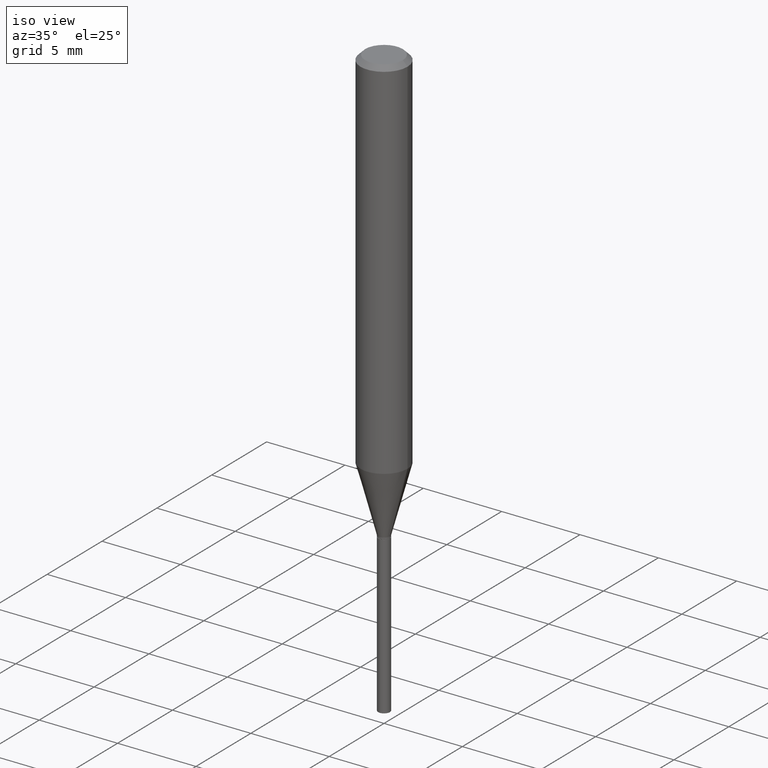
[diagram: clean part render]
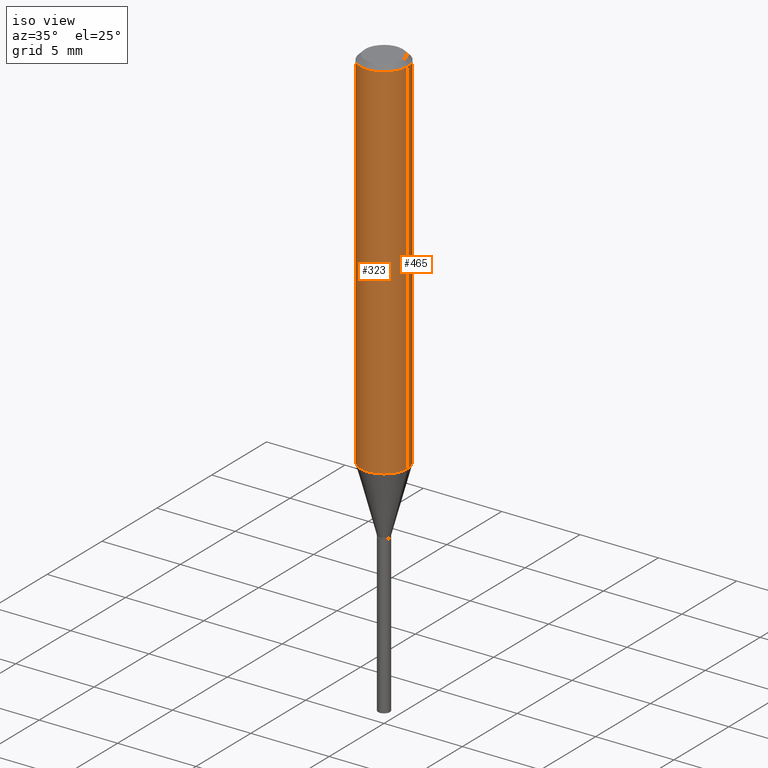
[diagram: same view with one multi-face feature highlighted, each face labeled with its STEP entity id]
A machine part, iso view. The highlighted faces form ONE feature: a constant-radius fillet chain: 2 tangent blend faces with common blend radius 1.4999 mm. The faces share edges in the B-rep.
Their STEP definitions:
[1] entity #465 (Cylinder):
#1 = DIRECTION ( 'NONE',  ( 1.000000000000000000, -6.982962677686266711E-15, 0.000000000000000000 ) ) ;
#13 = DIRECTION ( 'NONE',  ( -2.445468806185136877E-29, 3.491481338843145188E-15, 1.000000000000000000 ) ) ;
#19 = CARTESIAN_POINT ( 'NONE',  ( 0.05905000000000010935, -3.641161664854600986E-15, -0.9247701492246986898 ) ) ;
#30 = EDGE_CURVE ( 'NONE', #310, #244, #372, .T. ) ;
#64 = LINE ( 'NONE', #386, #243 ) ;
#70 = VECTOR ( 'NONE', #459, 39.37007874015748143 ) ;
#71 = DIRECTION ( 'NONE',  ( 1.000000000000000000, -6.982962677686267499E-15, 0.000000000000000000 ) ) ;
#77 = CARTESIAN_POINT ( 'NONE',  ( -0.05904999999999999832, -1.215450571208142207E-15, -0.01181000000000007218 ) ) ;
#110 = DIRECTION ( 'NONE',  ( -2.445468806185136597E-29, 3.491481338843145583E-15, 1.000000000000000000 ) ) ;
#119 = EDGE_CURVE ( 'NONE', #131, #310, #364, .T. ) ;
#120 = DIRECTION ( 'NONE',  ( 1.000000000000000000, -6.982962677686266711E-15, 4.876176775795935793E-29 ) ) ;
#126 = AXIS2_PLACEMENT_3D ( 'NONE', #167, #209, #71 ) ;
#131 = VERTEX_POINT ( 'NONE', #19 ) ;
#136 = AXIS2_PLACEMENT_3D ( 'NONE', #457, #110, #1 ) ;
#137 = ORIENTED_EDGE ( 'NONE', *, *, #327, .F. ) ;
#144 = VERTEX_POINT ( 'NONE', #317 ) ;
#167 = CARTESIAN_POINT ( 'NONE',  ( 2.261496552820174511E-29, -3.228817718737226460E-15, -0.9247701492246986898 ) ) ;
#173 = ORIENTED_EDGE ( 'NONE', *, *, #263, .F. ) ;
#209 = DIRECTION ( 'NONE',  ( -2.445468806185136597E-29, 3.491481338843145583E-15, 1.000000000000000000 ) ) ;
#243 = VECTOR ( 'NONE', #13, 39.37007874015748143 ) ;
#244 = VERTEX_POINT ( 'NONE', #77 ) ;
#254 = EDGE_LOOP ( 'NONE', ( #321, #277, #173, #137 ) ) ;
#259 = CARTESIAN_POINT ( 'NONE',  ( -0.05905000000000010935, -2.809242233270886178E-15, -0.9247701492246986898 ) ) ;
#263 = EDGE_CURVE ( 'NONE', #144, #244, #342, .T. ) ;
#277 = ORIENTED_EDGE ( 'NONE', *, *, #30, .T. ) ;
#309 = CARTESIAN_POINT ( 'NONE',  ( 0.000000000000000000, 0.000000000000000000, 0.000000000000000000 ) ) ;
#310 = VERTEX_POINT ( 'NONE', #259 ) ;
#317 = CARTESIAN_POINT ( 'NONE',  ( 0.05904999999999999832, -4.535783407291118600E-16, -0.01181000000000007218 ) ) ;
#321 = ORIENTED_EDGE ( 'NONE', *, *, #119, .T. ) ;
#327 = EDGE_CURVE ( 'NONE', #131, #144, #64, .T. ) ;
#335 = CARTESIAN_POINT ( 'NONE',  ( -0.05905000000000005383, 4.195754854663395423E-16, -2.904631170795524694E-30 ) ) ;
#339 = AXIS2_PLACEMENT_3D ( 'NONE', #309, #344, #120 ) ;
#342 = CIRCLE ( 'NONE', #136, 0.05904999999999999832 ) ;
#344 = DIRECTION ( 'NONE',  ( -2.445468806185136597E-29, 3.491481338843145583E-15, 1.000000000000000000 ) ) ;
#364 = CIRCLE ( 'NONE', #126, 0.05905000000000010935 ) ;
#372 = LINE ( 'NONE', #335, #70 ) ;
#386 = CARTESIAN_POINT ( 'NONE',  ( 0.05905000000000005383, -4.123439461173744271E-16, 2.879382386107502672E-30 ) ) ;
#415 = CYLINDRICAL_SURFACE ( 'NONE', #339, 0.05905000000000005383 ) ;
#457 = CARTESIAN_POINT ( 'NONE',  ( 2.888098660104664204E-31, -4.123439461173780263E-17, -0.01181000000000007218 ) ) ;
#458 = FACE_OUTER_BOUND ( 'NONE', #254, .T. ) ;
#459 = DIRECTION ( 'NONE',  ( -2.445468806185136877E-29, 3.491481338843145188E-15, 1.000000000000000000 ) ) ;
#465 = ADVANCED_FACE ( 'NONE', ( #458 ), #415, .T. ) ;
[2] entity #323 (Cylinder):
#13 = DIRECTION ( 'NONE',  ( -2.445468806185136877E-29, 3.491481338843145188E-15, 1.000000000000000000 ) ) ;
#19 = CARTESIAN_POINT ( 'NONE',  ( 0.05905000000000010935, -3.641161664854600986E-15, -0.9247701492246986898 ) ) ;
#30 = EDGE_CURVE ( 'NONE', #310, #244, #372, .T. ) ;
#48 = CARTESIAN_POINT ( 'NONE',  ( 2.888098660104664204E-31, -4.123439461173780263E-17, -0.01181000000000007218 ) ) ;
#58 = ORIENTED_EDGE ( 'NONE', *, *, #431, .F. ) ;
#64 = LINE ( 'NONE', #386, #243 ) ;
#70 = VECTOR ( 'NONE', #459, 39.37007874015748143 ) ;
#77 = CARTESIAN_POINT ( 'NONE',  ( -0.05904999999999999832, -1.215450571208142207E-15, -0.01181000000000007218 ) ) ;
#84 = CYLINDRICAL_SURFACE ( 'NONE', #314, 0.05905000000000005383 ) ;
#92 = DIRECTION ( 'NONE',  ( -2.445468806185136597E-29, 3.491481338843145583E-15, 1.000000000000000000 ) ) ;
#97 = DIRECTION ( 'NONE',  ( 1.000000000000000000, -6.982962677686267499E-15, 0.000000000000000000 ) ) ;
#131 = VERTEX_POINT ( 'NONE', #19 ) ;
#134 = ORIENTED_EDGE ( 'NONE', *, *, #488, .T. ) ;
#144 = VERTEX_POINT ( 'NONE', #317 ) ;
#179 = AXIS2_PLACEMENT_3D ( 'NONE', #48, #92, #271 ) ;
#243 = VECTOR ( 'NONE', #13, 39.37007874015748143 ) ;
#244 = VERTEX_POINT ( 'NONE', #77 ) ;
#249 = EDGE_LOOP ( 'NONE', ( #402, #134, #471, #58 ) ) ;
#259 = CARTESIAN_POINT ( 'NONE',  ( -0.05905000000000010935, -2.809242233270886178E-15, -0.9247701492246986898 ) ) ;
#271 = DIRECTION ( 'NONE',  ( 1.000000000000000000, -6.982962677686266711E-15, 0.000000000000000000 ) ) ;
#310 = VERTEX_POINT ( 'NONE', #259 ) ;
#314 = AXIS2_PLACEMENT_3D ( 'NONE', #375, #346, #381 ) ;
#317 = CARTESIAN_POINT ( 'NONE',  ( 0.05904999999999999832, -4.535783407291118600E-16, -0.01181000000000007218 ) ) ;
#323 = ADVANCED_FACE ( 'NONE', ( #410 ), #84, .T. ) ;
#327 = EDGE_CURVE ( 'NONE', #131, #144, #64, .T. ) ;
#335 = CARTESIAN_POINT ( 'NONE',  ( -0.05905000000000005383, 4.195754854663395423E-16, -2.904631170795524694E-30 ) ) ;
#346 = DIRECTION ( 'NONE',  ( -2.445468806185136597E-29, 3.491481338843145583E-15, 1.000000000000000000 ) ) ;
#372 = LINE ( 'NONE', #335, #70 ) ;
#375 = CARTESIAN_POINT ( 'NONE',  ( 0.000000000000000000, 0.000000000000000000, 0.000000000000000000 ) ) ;
#378 = CIRCLE ( 'NONE', #179, 0.05904999999999999832 ) ;
#381 = DIRECTION ( 'NONE',  ( 1.000000000000000000, -6.982962677686266711E-15, 4.876176775795935793E-29 ) ) ;
#386 = CARTESIAN_POINT ( 'NONE',  ( 0.05905000000000005383, -4.123439461173744271E-16, 2.879382386107502672E-30 ) ) ;
#402 = ORIENTED_EDGE ( 'NONE', *, *, #30, .F. ) ;
#407 = AXIS2_PLACEMENT_3D ( 'NONE', #426, #466, #97 ) ;
#410 = FACE_OUTER_BOUND ( 'NONE', #249, .T. ) ;
#426 = CARTESIAN_POINT ( 'NONE',  ( 2.261496552820174511E-29, -3.228817718737226460E-15, -0.9247701492246986898 ) ) ;
#431 = EDGE_CURVE ( 'NONE', #244, #144, #378, .T. ) ;
#459 = DIRECTION ( 'NONE',  ( -2.445468806185136877E-29, 3.491481338843145188E-15, 1.000000000000000000 ) ) ;
#466 = DIRECTION ( 'NONE',  ( -2.445468806185136597E-29, 3.491481338843145583E-15, 1.000000000000000000 ) ) ;
#471 = ORIENTED_EDGE ( 'NONE', *, *, #327, .T. ) ;
#477 = CIRCLE ( 'NONE', #407, 0.05905000000000010935 ) ;
#488 = EDGE_CURVE ( 'NONE', #310, #131, #477, .T. ) ;